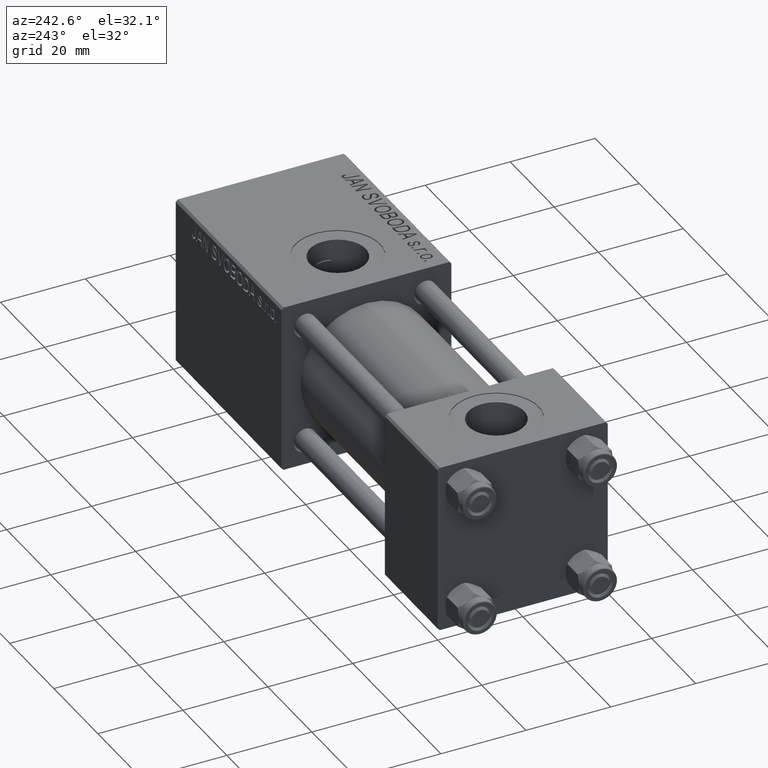
[diagram: clean part render]
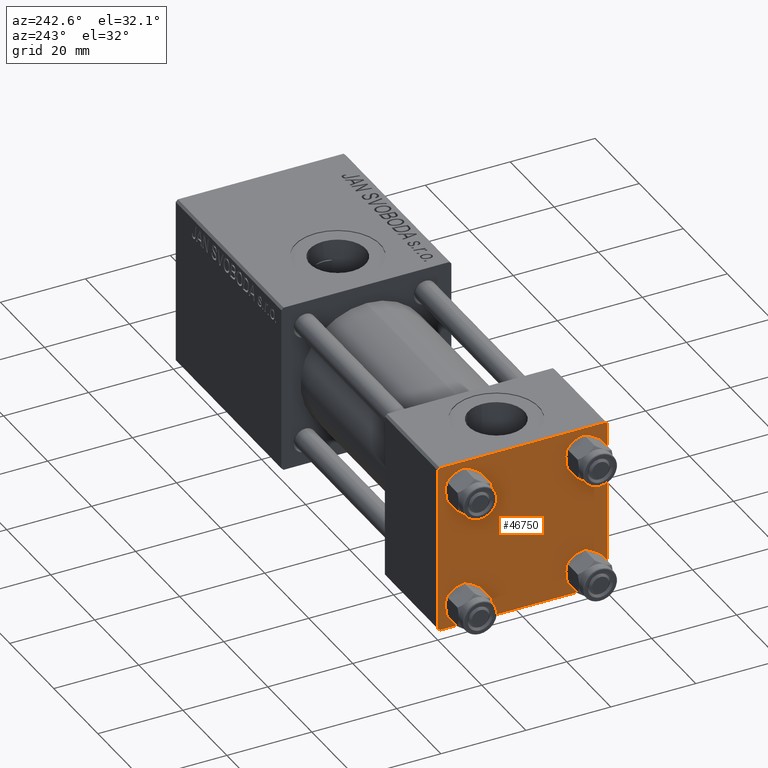
[diagram: same view with one face highlighted and labeled with its STEP entity id]
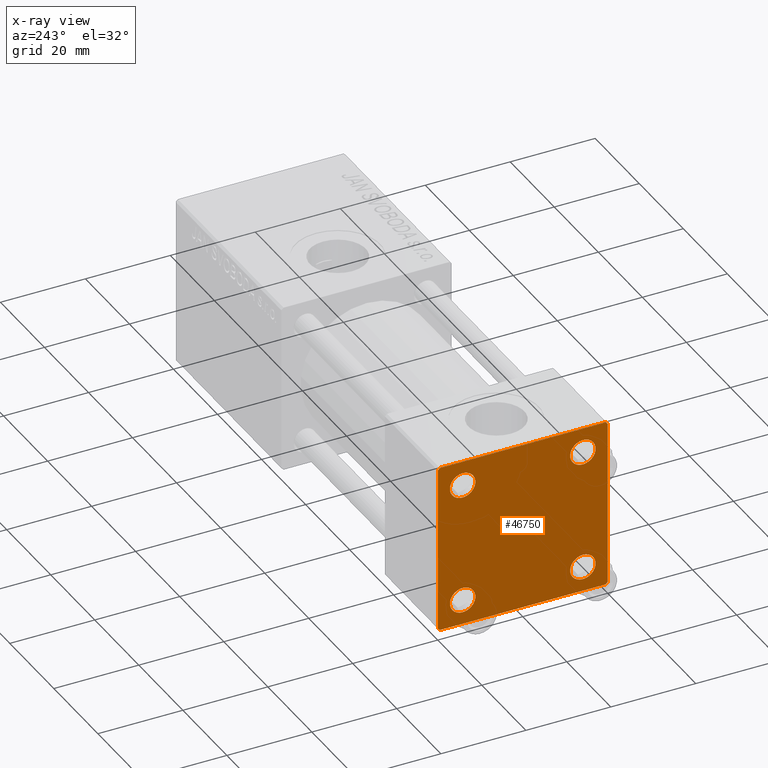
[diagram: x-ray of the same camera — body ghosted, the highlighted face saturated]
A machine part, auxiliary view. The second image highlights one B-rep face of the part: STEP entity #46750.
The next image is the same camera in x-ray: the body ghosted, the highlighted face saturated — about 0% of this face is hidden behind the body in this view.
In plain terms, the highlighted planar face has unit normal (-1, 0, 0).
Its self-contained STEP definition (entity closure, byte-faithful):
#185 = CARTESIAN_POINT ( 'NONE',  ( 0.000000000000000000, -19.49999999999999289, 19.99999999999998934 ) ) ;
#882 = AXIS2_PLACEMENT_3D ( 'NONE', #42290, #45857, #7508 ) ;
#1193 = CARTESIAN_POINT ( 'NONE',  ( 0.000000000000000000, 19.50000000000000000, 20.00000000000000000 ) ) ;
#1406 = DIRECTION ( 'NONE',  ( 1.000000000000000000, 0.000000000000000000, 0.000000000000000000 ) ) ;
#1908 = VERTEX_POINT ( 'NONE', #5162 ) ;
#2082 = EDGE_CURVE ( 'NONE', #40445, #48779, #47087, .T. ) ;
#2966 = ORIENTED_EDGE ( 'NONE', *, *, #48015, .T. ) ;
#3169 = DIRECTION ( 'NONE',  ( -0.000000000000000000, 0.7071067811865500152, 0.7071067811865451302 ) ) ;
#3240 = LINE ( 'NONE', #33196, #27572 ) ;
#3720 = ORIENTED_EDGE ( 'NONE', *, *, #42123, .T. ) ;
#3838 = CARTESIAN_POINT ( 'NONE',  ( 0.000000000000000000, 14.14999999999999858, 14.15000000000000036 ) ) ;
#3863 = CARTESIAN_POINT ( 'NONE',  ( 0.000000000000000000, 20.00000000000000000, -20.00000000000000711 ) ) ;
#4116 = AXIS2_PLACEMENT_3D ( 'NONE', #24278, #1406, #16915 ) ;
#4503 = DIRECTION ( 'NONE',  ( -0.000000000000000000, 0.000000000000000000, 1.000000000000000000 ) ) ;
#4691 = CARTESIAN_POINT ( 'NONE',  ( 0.000000000000000000, 20.00000000000000000, 19.49999999999999289 ) ) ;
#5026 = EDGE_CURVE ( 'NONE', #23021, #22385, #10476, .T. ) ;
#5162 = CARTESIAN_POINT ( 'NONE',  ( 0.000000000000000000, -14.14999999999999503, 17.14999999999998792 ) ) ;
#5713 = ORIENTED_EDGE ( 'NONE', *, *, #39247, .F. ) ;
#5987 = EDGE_LOOP ( 'NONE', ( #25553, #22249 ) ) ;
#5996 = ORIENTED_EDGE ( 'NONE', *, *, #33797, .T. ) ;
#6025 = DIRECTION ( 'NONE',  ( 0.000000000000000000, 0.000000000000000000, 1.000000000000000000 ) ) ;
#6200 = DIRECTION ( 'NONE',  ( 0.000000000000000000, 0.000000000000000000, 1.000000000000000000 ) ) ;
#6375 = ORIENTED_EDGE ( 'NONE', *, *, #10297, .T. ) ;
#6484 = DIRECTION ( 'NONE',  ( 0.000000000000000000, 0.000000000000000000, 1.000000000000000000 ) ) ;
#6747 = DIRECTION ( 'NONE',  ( 1.000000000000000000, 0.000000000000000000, 0.000000000000000000 ) ) ;
#6949 = VERTEX_POINT ( 'NONE', #20701 ) ;
#7508 = DIRECTION ( 'NONE',  ( 0.000000000000000000, 0.000000000000000000, 1.000000000000000000 ) ) ;
#8799 = CARTESIAN_POINT ( 'NONE',  ( 0.000000000000000000, 14.14999999999999858, -14.15000000000000036 ) ) ;
#8957 = AXIS2_PLACEMENT_3D ( 'NONE', #19234, #19750, #4503 ) ;
#9303 = DIRECTION ( 'NONE',  ( 0.000000000000000000, 0.000000000000000000, 1.000000000000000000 ) ) ;
#9717 = CIRCLE ( 'NONE', #30825, 2.999999999999983569 ) ;
#9996 = ORIENTED_EDGE ( 'NONE', *, *, #30606, .T. ) ;
#10186 = ORIENTED_EDGE ( 'NONE', *, *, #33513, .T. ) ;
#10297 = EDGE_CURVE ( 'NONE', #23246, #1908, #35876, .T. ) ;
#10476 = LINE ( 'NONE', #25987, #37427 ) ;
#11680 = VERTEX_POINT ( 'NONE', #27809 ) ;
#11790 = VECTOR ( 'NONE', #45945, 1000.000000000000000 ) ;
#11823 = VERTEX_POINT ( 'NONE', #47847 ) ;
#13199 = VERTEX_POINT ( 'NONE', #50169 ) ;
#13265 = CARTESIAN_POINT ( 'NONE',  ( 0.000000000000000000, 14.14999999999999858, 17.14999999999998437 ) ) ;
#13817 = CARTESIAN_POINT ( 'NONE',  ( 0.000000000000000000, -14.14999999999999503, -14.15000000000000391 ) ) ;
#13831 = EDGE_LOOP ( 'NONE', ( #46029, #43539 ) ) ;
#14536 = DIRECTION ( 'NONE',  ( -0.000000000000000000, -0.7071067811865524577, -0.7071067811865426878 ) ) ;
#14983 = CARTESIAN_POINT ( 'NONE',  ( 0.000000000000000000, 20.00000000000000000, 20.00000000000000000 ) ) ;
#15695 = ORIENTED_EDGE ( 'NONE', *, *, #24377, .T. ) ;
#15697 = PLANE ( 'NONE',  #8957 ) ;
#16396 = ORIENTED_EDGE ( 'NONE', *, *, #23899, .T. ) ;
#16747 = DIRECTION ( 'NONE',  ( 1.000000000000000000, 0.000000000000000000, 0.000000000000000000 ) ) ;
#16915 = DIRECTION ( 'NONE',  ( 0.000000000000000000, 0.000000000000000000, 1.000000000000000000 ) ) ;
#17317 = VECTOR ( 'NONE', #30225, 1000.000000000000000 ) ;
#17318 = CARTESIAN_POINT ( 'NONE',  ( 0.000000000000000000, -14.14999999999999503, -11.15000000000000036 ) ) ;
#17669 = LINE ( 'NONE', #3863, #43631 ) ;
#17957 = DIRECTION ( 'NONE',  ( 1.000000000000000000, 0.000000000000000000, 0.000000000000000000 ) ) ;
#18558 = EDGE_LOOP ( 'NONE', ( #2966, #6375 ) ) ;
#19234 = CARTESIAN_POINT ( 'NONE',  ( 0.000000000000000000, 0.000000000000000000, 0.000000000000000000 ) ) ;
#19406 = CARTESIAN_POINT ( 'NONE',  ( -0.000000000000000000, -19.74999999999992539, 19.75000000000006395 ) ) ;
#19460 = VERTEX_POINT ( 'NONE', #17318 ) ;
#19648 = AXIS2_PLACEMENT_3D ( 'NONE', #44159, #16747, #24351 ) ;
#19671 = CIRCLE ( 'NONE', #35190, 3.000000000000004441 ) ;
#19750 = DIRECTION ( 'NONE',  ( -1.000000000000000000, 0.000000000000000000, -0.000000000000000000 ) ) ;
#20412 = VERTEX_POINT ( 'NONE', #41869 ) ;
#20701 = CARTESIAN_POINT ( 'NONE',  ( 0.000000000000000000, 14.14999999999999858, -17.14999999999998437 ) ) ;
#21005 = EDGE_CURVE ( 'NONE', #41917, #20412, #3240, .T. ) ;
#21140 = CIRCLE ( 'NONE', #882, 2.999999999999983569 ) ;
#21287 = AXIS2_PLACEMENT_3D ( 'NONE', #44876, #17957, #6025 ) ;
#21909 = EDGE_CURVE ( 'NONE', #11823, #6949, #9717, .T. ) ;
#22189 = DIRECTION ( 'NONE',  ( 0.000000000000000000, 0.7071067811865425767, -0.7071067811865525687 ) ) ;
#22249 = ORIENTED_EDGE ( 'NONE', *, *, #2082, .T. ) ;
#22385 = VERTEX_POINT ( 'NONE', #4691 ) ;
#22850 = VERTEX_POINT ( 'NONE', #185 ) ;
#22915 = LINE ( 'NONE', #27223, #39999 ) ;
#23021 = VERTEX_POINT ( 'NONE', #1193 ) ;
#23246 = VERTEX_POINT ( 'NONE', #25502 ) ;
#23628 = VECTOR ( 'NONE', #32704, 1000.000000000000000 ) ;
#23899 = EDGE_CURVE ( 'NONE', #11680, #19460, #39783, .T. ) ;
#23909 = DIRECTION ( 'NONE',  ( 0.000000000000000000, 0.000000000000000000, 1.000000000000000000 ) ) ;
#24278 = CARTESIAN_POINT ( 'NONE',  ( 0.000000000000000000, -14.14999999999999503, -14.15000000000000391 ) ) ;
#24351 = DIRECTION ( 'NONE',  ( 0.000000000000000000, 0.000000000000000000, 1.000000000000000000 ) ) ;
#24377 = EDGE_CURVE ( 'NONE', #22385, #25244, #40323, .T. ) ;
#24416 = CARTESIAN_POINT ( 'NONE',  ( 0.000000000000000000, 20.00000000000000000, -19.50000000000002132 ) ) ;
#24757 = EDGE_CURVE ( 'NONE', #48779, #40445, #31699, .T. ) ;
#25096 = CARTESIAN_POINT ( 'NONE',  ( 0.000000000000000000, 20.00000000000000000, 20.00000000000000000 ) ) ;
#25244 = VERTEX_POINT ( 'NONE', #24416 ) ;
#25502 = CARTESIAN_POINT ( 'NONE',  ( 0.000000000000000000, -14.14999999999999503, 11.15000000000002345 ) ) ;
#25553 = ORIENTED_EDGE ( 'NONE', *, *, #24757, .T. ) ;
#25987 = CARTESIAN_POINT ( 'NONE',  ( -0.000000000000000000, 19.75000000000013500, 19.74999999999986144 ) ) ;
#26842 = AXIS2_PLACEMENT_3D ( 'NONE', #37201, #6747, #6484 ) ;
#27223 = CARTESIAN_POINT ( 'NONE',  ( -0.000000000000000000, 19.74999999999986855, -19.75000000000014211 ) ) ;
#27360 = FACE_BOUND ( 'NONE', #13831, .T. ) ;
#27572 = VECTOR ( 'NONE', #34219, 1000.000000000000000 ) ;
#27607 = FACE_OUTER_BOUND ( 'NONE', #40787, .T. ) ;
#27784 = CIRCLE ( 'NONE', #21287, 2.999999999999983569 ) ;
#27809 = CARTESIAN_POINT ( 'NONE',  ( 0.000000000000000000, -14.14999999999999503, -17.15000000000000924 ) ) ;
#29811 = DIRECTION ( 'NONE',  ( 1.000000000000000000, 0.000000000000000000, 0.000000000000000000 ) ) ;
#30225 = DIRECTION ( 'NONE',  ( 0.000000000000000000, -0.7071067811865401342, 0.7071067811865549002 ) ) ;
#30606 = EDGE_CURVE ( 'NONE', #19460, #11680, #19671, .T. ) ;
#30825 = AXIS2_PLACEMENT_3D ( 'NONE', #8799, #48403, #9303 ) ;
#31664 = FACE_BOUND ( 'NONE', #18558, .T. ) ;
#31699 = CIRCLE ( 'NONE', #26842, 2.999999999999983569 ) ;
#32236 = EDGE_CURVE ( 'NONE', #6949, #11823, #27784, .T. ) ;
#32704 = DIRECTION ( 'NONE',  ( 0.000000000000000000, 0.000000000000000000, -1.000000000000000000 ) ) ;
#33196 = CARTESIAN_POINT ( 'NONE',  ( 0.000000000000000000, -20.00000000000000355, 19.99999999999998934 ) ) ;
#33404 = EDGE_LOOP ( 'NONE', ( #9996, #16396 ) ) ;
#33513 = EDGE_CURVE ( 'NONE', #25244, #13199, #22915, .T. ) ;
#33769 = LINE ( 'NONE', #37581, #17317 ) ;
#33797 = EDGE_CURVE ( 'NONE', #40707, #20412, #33769, .T. ) ;
#34219 = DIRECTION ( 'NONE',  ( 0.000000000000000000, 8.673617379884036705E-17, -1.000000000000000000 ) ) ;
#34268 = LINE ( 'NONE', #14983, #11790 ) ;
#34974 = CARTESIAN_POINT ( 'NONE',  ( 0.000000000000000000, -20.00000000000000355, 19.49999999999998224 ) ) ;
#35190 = AXIS2_PLACEMENT_3D ( 'NONE', #13817, #29811, #6200 ) ;
#35594 = ORIENTED_EDGE ( 'NONE', *, *, #21005, .F. ) ;
#35732 = AXIS2_PLACEMENT_3D ( 'NONE', #3838, #38876, #23909 ) ;
#35876 = CIRCLE ( 'NONE', #19648, 2.999999999999983569 ) ;
#36962 = DIRECTION ( 'NONE',  ( 0.000000000000000000, -1.000000000000000000, 1.734723475976807094E-16 ) ) ;
#37201 = CARTESIAN_POINT ( 'NONE',  ( 0.000000000000000000, 14.14999999999999858, 14.15000000000000036 ) ) ;
#37427 = VECTOR ( 'NONE', #22189, 999.9999999999998863 ) ;
#37581 = CARTESIAN_POINT ( 'NONE',  ( 0.000000000000000000, -19.75000000000020961, -19.74999999999979394 ) ) ;
#37950 = LINE ( 'NONE', #19406, #47567 ) ;
#38876 = DIRECTION ( 'NONE',  ( 1.000000000000000000, 0.000000000000000000, 0.000000000000000000 ) ) ;
#39247 = EDGE_CURVE ( 'NONE', #23021, #22850, #34268, .T. ) ;
#39290 = FACE_BOUND ( 'NONE', #33404, .T. ) ;
#39503 = ORIENTED_EDGE ( 'NONE', *, *, #40856, .T. ) ;
#39783 = CIRCLE ( 'NONE', #4116, 3.000000000000004441 ) ;
#39999 = VECTOR ( 'NONE', #14536, 1000.000000000000000 ) ;
#40323 = LINE ( 'NONE', #25096, #23628 ) ;
#40445 = VERTEX_POINT ( 'NONE', #44202 ) ;
#40707 = VERTEX_POINT ( 'NONE', #46700 ) ;
#40787 = EDGE_LOOP ( 'NONE', ( #15695, #10186, #3720, #5996, #35594, #39503, #5713, #42642 ) ) ;
#40856 = EDGE_CURVE ( 'NONE', #41917, #22850, #37950, .T. ) ;
#41869 = CARTESIAN_POINT ( 'NONE',  ( 0.000000000000000000, -20.00000000000000000, -19.49999999999999645 ) ) ;
#41917 = VERTEX_POINT ( 'NONE', #34974 ) ;
#42123 = EDGE_CURVE ( 'NONE', #13199, #40707, #17669, .T. ) ;
#42290 = CARTESIAN_POINT ( 'NONE',  ( 0.000000000000000000, -14.14999999999999503, 14.15000000000000391 ) ) ;
#42642 = ORIENTED_EDGE ( 'NONE', *, *, #5026, .T. ) ;
#43539 = ORIENTED_EDGE ( 'NONE', *, *, #32236, .T. ) ;
#43631 = VECTOR ( 'NONE', #36962, 1000.000000000000000 ) ;
#44159 = CARTESIAN_POINT ( 'NONE',  ( 0.000000000000000000, -14.14999999999999503, 14.15000000000000391 ) ) ;
#44202 = CARTESIAN_POINT ( 'NONE',  ( 0.000000000000000000, 14.14999999999999858, 11.15000000000001990 ) ) ;
#44876 = CARTESIAN_POINT ( 'NONE',  ( 0.000000000000000000, 14.14999999999999858, -14.15000000000000036 ) ) ;
#45857 = DIRECTION ( 'NONE',  ( 1.000000000000000000, 0.000000000000000000, 0.000000000000000000 ) ) ;
#45945 = DIRECTION ( 'NONE',  ( 0.000000000000000000, -1.000000000000000000, -2.602085213965210149E-16 ) ) ;
#46029 = ORIENTED_EDGE ( 'NONE', *, *, #21909, .T. ) ;
#46700 = CARTESIAN_POINT ( 'NONE',  ( 0.000000000000000000, -19.50000000000000711, -20.00000000000000000 ) ) ;
#46750 = ADVANCED_FACE ( 'NONE', ( #31664, #39290, #27360, #47409, #27607 ), #15697, .T. ) ;
#47087 = CIRCLE ( 'NONE', #35732, 2.999999999999983569 ) ;
#47409 = FACE_BOUND ( 'NONE', #5987, .T. ) ;
#47567 = VECTOR ( 'NONE', #3169, 1000.000000000000114 ) ;
#47847 = CARTESIAN_POINT ( 'NONE',  ( 0.000000000000000000, 14.14999999999999858, -11.15000000000001812 ) ) ;
#48015 = EDGE_CURVE ( 'NONE', #1908, #23246, #21140, .T. ) ;
#48403 = DIRECTION ( 'NONE',  ( 1.000000000000000000, 0.000000000000000000, 0.000000000000000000 ) ) ;
#48779 = VERTEX_POINT ( 'NONE', #13265 ) ;
#50169 = CARTESIAN_POINT ( 'NONE',  ( 0.000000000000000000, 19.50000000000000711, -20.00000000000000711 ) ) ;